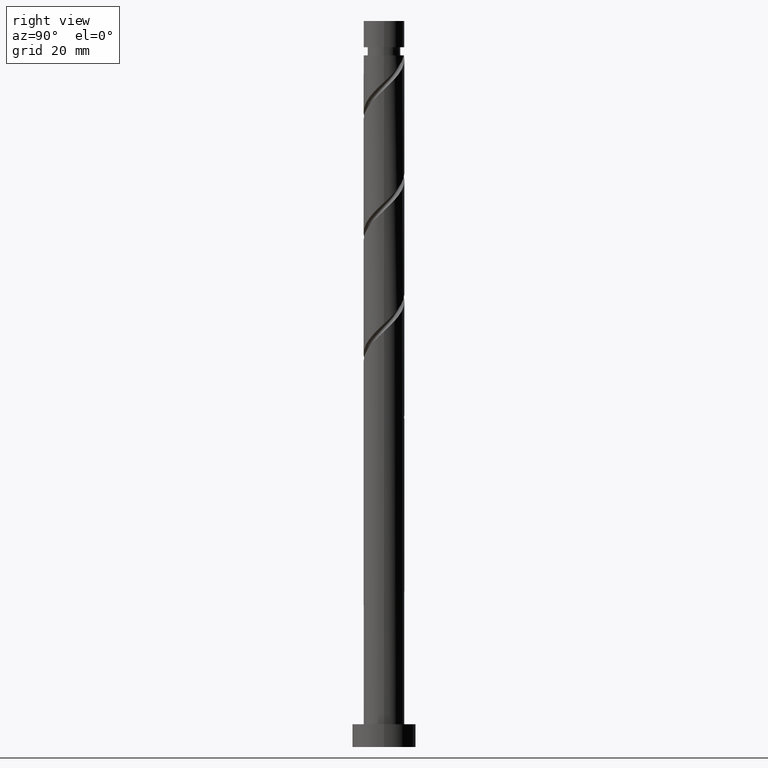
[diagram: clean part render]
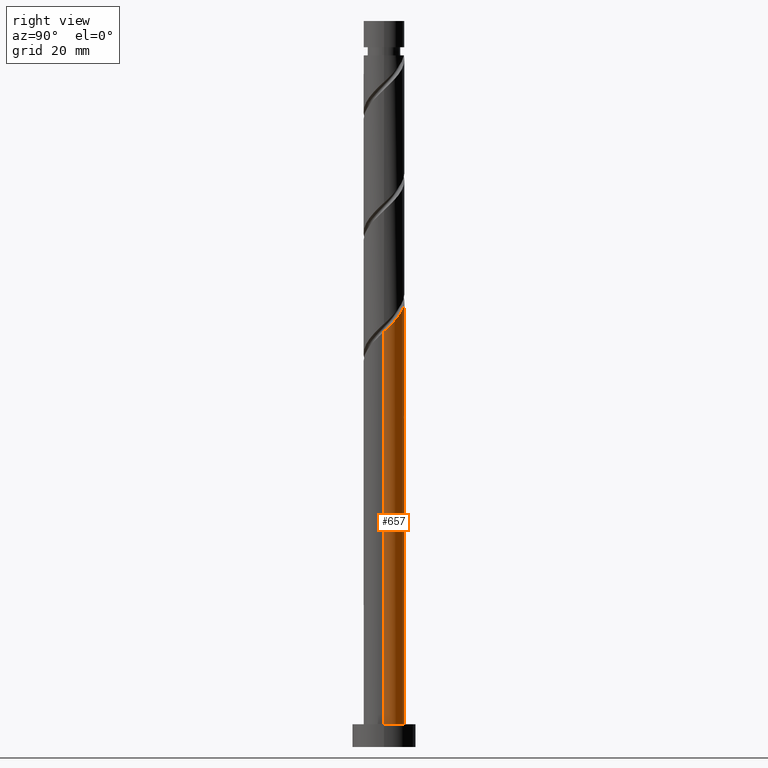
[diagram: same view with one face highlighted and labeled with its STEP entity id]
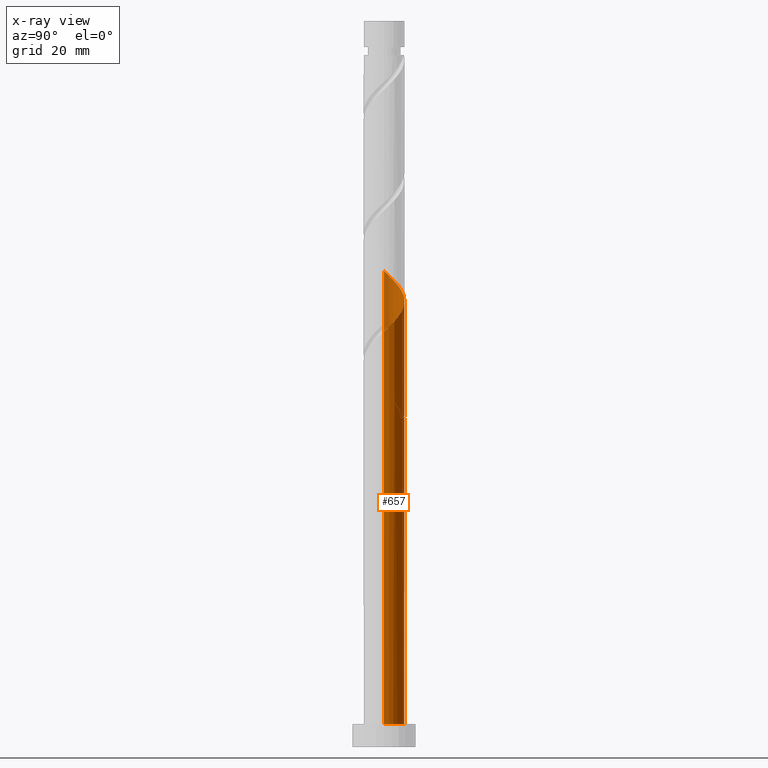
[diagram: x-ray of the same camera — body ghosted, the highlighted face saturated]
A machine part, right view. The second image highlights one B-rep face of the part: STEP entity #657.
The next image is the same camera in x-ray: the body ghosted, the highlighted face saturated — about 0% of this face is hidden behind the body in this view.
In plain terms, the highlighted cylindrical surface (edge-blend (fillet) strip) has radius 4.5 mm, axis along (-0, -0, -1).
Its self-contained STEP definition (entity closure, byte-faithful):
#18 = CARTESIAN_POINT ( 'NONE',  ( -4.500000000000007105, -3.395198299693686039E-15, 78.24505518243749691 ) ) ;
#21 = CARTESIAN_POINT ( 'NONE',  ( -4.500000000000007105, -3.395198299693686039E-15, 104.9117218491041683 ) ) ;
#33 = CARTESIAN_POINT ( 'NONE',  ( -4.500000000000000888, 0.000000000000000000, 160.0000000000000000 ) ) ;
#47 = CARTESIAN_POINT ( 'NONE',  ( -0.3832254664060549820, 4.483652332852969380, 73.63996420719293212 ) ) ;
#54 = DIRECTION ( 'NONE',  ( -1.000000000000000000, 0.000000000000000000, 0.000000000000000000 ) ) ;
#112 = CARTESIAN_POINT ( 'NONE',  ( 4.237671230118719379, 1.513982346470448714, 93.03390360113230884 ) ) ;
#115 = DIRECTION ( 'NONE',  ( 0.000000000000000000, 0.000000000000000000, 1.000000000000000000 ) ) ;
#129 = CARTESIAN_POINT ( 'NONE',  ( 2.746435239905300030, 3.564701035571758769, 95.45814602537474514 ) ) ;
#137 = ORIENTED_EDGE ( 'NONE', *, *, #328, .F. ) ;
#153 = VERTEX_POINT ( 'NONE', #1141 ) ;
#182 = VECTOR ( 'NONE', #1261, 1000.000000000000000 ) ;
#200 = CARTESIAN_POINT ( 'NONE',  ( 4.455349029032746877, 0.9046972064923994861, 92.42784299507169976 ) ) ;
#210 = AXIS2_PLACEMENT_3D ( 'NONE', #1637, #115, #1628 ) ;
#228 = CARTESIAN_POINT ( 'NONE',  ( -4.455349029032739772, 0.9046972064924000412, 79.09450966173838538 ) ) ;
#230 = CARTESIAN_POINT ( 'NONE',  ( -4.500000000000000888, 4.696441700897907453E-15, 79.94396414103928805 ) ) ;
#233 = ORIENTED_EDGE ( 'NONE', *, *, #405, .F. ) ;
#240 = CARTESIAN_POINT ( 'NONE',  ( -3.639477652303301447, 2.646545374329495992, 77.27632784355655815 ) ) ;
#262 = CARTESIAN_POINT ( 'NONE',  ( -2.101655684935357371, 3.979075694426905230, 100.3066308738595751 ) ) ;
#267 = CARTESIAN_POINT ( 'NONE',  ( -3.601357663860915714, 2.774677455649293023, 102.1248126920414308 ) ) ;
#268 = CARTESIAN_POINT ( 'NONE',  ( -3.919276005899266391, 2.211170637825664809, 76.06420663143536842 ) ) ;
#271 = DIRECTION ( 'NONE',  ( -0.000000000000000000, -0.000000000000000000, -1.000000000000000000 ) ) ;
#285 = VECTOR ( 'NONE', #271, 1000.000000000000000 ) ;
#328 = EDGE_CURVE ( 'NONE', #404, #549, #1503, .T. ) ;
#367 = CARTESIAN_POINT ( 'NONE',  ( -2.746435239905296477, 3.564701035571754328, 76.06420663143535421 ) ) ;
#373 = CARTESIAN_POINT ( 'NONE',  ( 3.639477652303308108, 2.646545374329497768, 94.24602481325354120 ) ) ;
#382 = CARTESIAN_POINT ( 'NONE',  ( 1.630892978049458764, 4.194065819005350804, 96.67026723749594908 ) ) ;
#390 = CARTESIAN_POINT ( 'NONE',  ( 3.258961873401925224, 3.169823262210497816, 94.85208541931415027 ) ) ;
#393 = CARTESIAN_POINT ( 'NONE',  ( 4.500000000000000888, 5.510910596163089556E-16, 160.0000000000000000 ) ) ;
#398 = CARTESIAN_POINT ( 'NONE',  ( -4.500000000000006217, 0.5153801732330614005, 104.4257618961328404 ) ) ;
#404 = VERTEX_POINT ( 'NONE', #998 ) ;
#405 = EDGE_CURVE ( 'NONE', #940, #404, #987, .T. ) ;
#428 = CARTESIAN_POINT ( 'NONE',  ( -2.101655684935357371, 3.979075694426905230, 73.63996420719293212 ) ) ;
#484 = AXIS2_PLACEMENT_3D ( 'NONE', #1597, #1304, #54 ) ;
#489 = EDGE_CURVE ( 'NONE', #1148, #671, #918, .T. ) ;
#523 = CARTESIAN_POINT ( 'NONE',  ( -2.673760399956921052, 3.676903225482062609, 100.9126914799202126 ) ) ;
#524 = CARTESIAN_POINT ( 'NONE',  ( -3.137559031908918161, 3.225790340565678260, 74.85208541931413606 ) ) ;
#525 = CARTESIAN_POINT ( 'NONE',  ( 4.500000000000000888, 5.510910596163089556E-16, 5.000000000000000000 ) ) ;
#532 = CARTESIAN_POINT ( 'NONE',  ( -4.237194347937617955, 1.647663820002035040, 76.67026723749594908 ) ) ;
#549 = VERTEX_POINT ( 'NONE', #230 ) ;
#566 = CARTESIAN_POINT ( 'NONE',  ( -4.500000000000000888, 0.000000000000000000, 5.000000000000000000 ) ) ;
#623 = CARTESIAN_POINT ( 'NONE',  ( 4.019993431204690992, 2.123267486448498609, 93.63996420719296054 ) ) ;
#649 = CARTESIAN_POINT ( 'NONE',  ( -1.027877349690237141, 4.428552829077677444, 74.24602481325354120 ) ) ;
#657 = ADVANCED_FACE ( 'NONE', ( #1065 ), #932, .T. ) ;
#663 = CARTESIAN_POINT ( 'NONE',  ( -0.2614264168781256226, 4.538751836628266645, 98.48844905567779051 ) ) ;
#667 = LINE ( 'NONE', #33, #182 ) ;
#671 = VERTEX_POINT ( 'NONE', #566 ) ;
#679 = CARTESIAN_POINT ( 'NONE',  ( -0.8954886933959586015, 4.410000000000006359, 72.42784299507172818 ) ) ;
#681 = CARTESIAN_POINT ( 'NONE',  ( 0.2614264168781267328, 4.538751836628258651, 73.03390360113233726 ) ) ;
#711 = EDGE_CURVE ( 'NONE', #779, #153, #849, .T. ) ;
#714 = CARTESIAN_POINT ( 'NONE',  ( -4.500000000000007105, -3.395198299693686039E-15, 78.24505518243749691 ) ) ;
#723 = DIRECTION ( 'NONE',  ( -0.000000000000000000, -0.000000000000000000, -1.000000000000000000 ) ) ;
#740 = CARTESIAN_POINT ( 'NONE',  ( -4.019993431204682999, 2.123267486448497277, 77.88238844961716723 ) ) ;
#746 = CARTESIAN_POINT ( 'NONE',  ( 4.500000000000006217, 0.1294898693572087978, 91.70048652048905069 ) ) ;
#758 = CARTESIAN_POINT ( 'NONE',  ( -4.500000000000000888, 0.000000000000000000, 160.0000000000000000 ) ) ;
#771 = CARTESIAN_POINT ( 'NONE',  ( -3.919276005899266391, 2.211170637825664809, 102.7308732981020256 ) ) ;
#777 = CARTESIAN_POINT ( 'NONE',  ( -3.137559031908918161, 3.225790340565678260, 101.5187520859807933 ) ) ;
#779 = VERTEX_POINT ( 'NONE', #679 ) ;
#811 = CARTESIAN_POINT ( 'NONE',  ( 0.000000000000000000, 0.000000000000000000, 160.0000000000000000 ) ) ;
#849 = CIRCLE ( 'NONE', #484, 4.500000000000000888 ) ;
#856 = CARTESIAN_POINT ( 'NONE',  ( -4.500000000000000000, 0.1294898693572039405, 79.82186613632107708 ) ) ;
#870 = EDGE_CURVE ( 'NONE', #1160, #671, #667, .T. ) ;
#871 = CARTESIAN_POINT ( 'NONE',  ( -2.233908606408675723, 3.959578808933012617, 75.45814602537477356 ) ) ;
#890 = EDGE_LOOP ( 'NONE', ( #233, #1572, #1007, #1493, #1434, #900, #1507, #137 ) ) ;
#892 = CARTESIAN_POINT ( 'NONE',  ( -0.8954886933959586015, 4.410000000000006359, 72.42784299507172818 ) ) ;
#900 = ORIENTED_EDGE ( 'NONE', *, *, #711, .T. ) ;
#903 = LINE ( 'NONE', #393, #285 ) ;
#908 = VECTOR ( 'NONE', #723, 1000.000000000000000 ) ;
#918 = CIRCLE ( 'NONE', #210, 4.500000000000000888 ) ;
#932 = CYLINDRICAL_SURFACE ( 'NONE', #1247, 4.500000000000000888 ) ;
#940 = VERTEX_POINT ( 'NONE', #1041 ) ;
#987 =( BOUNDED_CURVE ( )  B_SPLINE_CURVE ( 2, ( #1345, #746, #1640, #200, #112, #623, #373, #390, #129, #1563, #382, #1412, #1016, #663, #1544, #1405, #262, #523, #777, #267, #771, #1156, #1422, #398, #21 ),
 .UNSPECIFIED., .F., .T. ) 
 B_SPLINE_CURVE_WITH_KNOTS ( ( 3, 2, 2, 2, 2, 2, 2, 2, 2, 2, 2, 2, 3 ),
 ( 0.1795252162417514397, 0.1818181818181817677, 0.1931818181818182323, 0.2045454545454545858, 0.2159090909090909394, 0.2272727272727272929, 0.2386363636363636465, 0.2500000000000000000, 0.2613636363636363535, 0.2727272727272727071, 0.2840909090909090606, 0.2954545454545454142, 0.3045252162417511621 ),
 .UNSPECIFIED. ) 
 CURVE ( )  GEOMETRIC_REPRESENTATION_ITEM ( )  RATIONAL_B_SPLINE_CURVE ( ( 0.9061101570135606798, 0.9072237824201427880, 0.9090909090909201629, 0.8998376744372224012, 0.9090909090909201629, 0.8998376744372224012, 0.9090909090909201629, 0.8998376744372224012, 0.9090909090909201629, 0.8998376744372224012, 0.9090909090909201629, 0.8998376744372224012, 0.9090909090909201629, 0.8998376744372224012, 0.9090909090909201629, 0.8998376744372224012, 0.9090909090909201629, 0.8998376744372224012, 0.9090909090909201629, 0.8998376744372224012, 0.9090909090909201629, 0.8998376744372224012, 0.9090909090909201629, 0.9017048011079999981, 0.9061101570135603467 ) ) 
 REPRESENTATION_ITEM ( '' )  );
#994 = EDGE_CURVE ( 'NONE', #549, #153, #1157, .T. ) ;
#998 = CARTESIAN_POINT ( 'NONE',  ( -4.500000000000007105, -3.395198299693686039E-15, 104.9117218491041683 ) ) ;
#1000 = CARTESIAN_POINT ( 'NONE',  ( -3.258961873401917675, 3.169823262210495596, 76.67026723749597750 ) ) ;
#1007 = ORIENTED_EDGE ( 'NONE', *, *, #489, .T. ) ;
#1009 = CARTESIAN_POINT ( 'NONE',  ( -4.237671230118711385, 1.513982346470447826, 78.48844905567777630 ) ) ;
#1016 = CARTESIAN_POINT ( 'NONE',  ( 0.3832254664060570359, 4.483652332852976485, 97.88238844961716723 ) ) ;
#1018 = EDGE_CURVE ( 'NONE', #779, #1160, #1331, .T. ) ;
#1028 = CARTESIAN_POINT ( 'NONE',  ( -4.500000000000007994, 0.5153801732330529628, 77.75909522946616903 ) ) ;
#1041 = CARTESIAN_POINT ( 'NONE',  ( 4.500000000000007994, 3.215716451251728954E-15, 91.57838851577083972 ) ) ;
#1065 = FACE_OUTER_BOUND ( 'NONE', #890, .T. ) ;
#1073 = EDGE_CURVE ( 'NONE', #940, #1148, #903, .T. ) ;
#1141 = CARTESIAN_POINT ( 'NONE',  ( 0.8954886933959600448, 4.410000000000000142, 72.42784299507172818 ) ) ;
#1148 = VERTEX_POINT ( 'NONE', #525 ) ;
#1150 = CARTESIAN_POINT ( 'NONE',  ( -2.673760399956921052, 3.676903225482062609, 74.24602481325352699 ) ) ;
#1156 = CARTESIAN_POINT ( 'NONE',  ( -4.237194347937617955, 1.647663820002035040, 103.3369339041625921 ) ) ;
#1157 =( BOUNDED_CURVE ( )  B_SPLINE_CURVE ( 2, ( #1517, #856, #1373, #228, #1009, #740, #240, #1000, #367, #871, #1391, #649, #47, #681, #1158 ),
 .UNSPECIFIED., .F., .T. ) 
 B_SPLINE_CURVE_WITH_KNOTS ( ( 3, 2, 2, 2, 2, 2, 2, 3 ),
 ( 0.9295252162417513286, 0.9318181818181817677, 0.9431818181818182323, 0.9545454545454545858, 0.9659090909090909394, 0.9772727272727272929, 0.9886363636363636465, 1.000000000000000000 ),
 .UNSPECIFIED. ) 
 CURVE ( )  GEOMETRIC_REPRESENTATION_ITEM ( )  RATIONAL_B_SPLINE_CURVE ( ( 0.9061101570135537964, 0.9072237824201360157, 0.9090909090909135015, 0.8998376744372158509, 0.9090909090909135015, 0.8998376744372158509, 0.9090909090909135015, 0.8998376744372158509, 0.9090909090909135015, 0.8998376744372158509, 0.9090909090909135015, 0.8998376744372158509, 0.9090909090909135015, 0.8998376744372158509, 0.9090909090909135015 ) ) 
 REPRESENTATION_ITEM ( '' )  );
#1158 = CARTESIAN_POINT ( 'NONE',  ( 0.8954886933959600448, 4.410000000000000142, 72.42784299507172818 ) ) ;
#1160 = VERTEX_POINT ( 'NONE', #714 ) ;
#1184 = CARTESIAN_POINT ( 'NONE',  ( -1.529550969913793246, 4.281248163371747850, 73.03390360113233726 ) ) ;
#1212 = DIRECTION ( 'NONE',  ( -1.000000000000000000, 0.000000000000000000, 0.000000000000000000 ) ) ;
#1247 = AXIS2_PLACEMENT_3D ( 'NONE', #811, #1334, #1212 ) ;
#1261 = DIRECTION ( 'NONE',  ( -0.000000000000000000, -0.000000000000000000, -1.000000000000000000 ) ) ;
#1304 = DIRECTION ( 'NONE',  ( 0.000000000000000000, -0.000000000000000000, -1.000000000000000000 ) ) ;
#1331 =( BOUNDED_CURVE ( )  B_SPLINE_CURVE ( 2, ( #892, #1184, #428, #1150, #524, #1414, #268, #532, #1556, #1028, #18 ),
 .UNSPECIFIED., .F., .T. ) 
 B_SPLINE_CURVE_WITH_KNOTS ( ( 3, 2, 2, 2, 2, 3 ),
 ( 0.000000000000000000, 0.01136363636363635181, 0.02272727272727270362, 0.03409090909090906063, 0.04545454545454540723, 0.05452521624175130782 ),
 .UNSPECIFIED. ) 
 CURVE ( )  GEOMETRIC_REPRESENTATION_ITEM ( )  RATIONAL_B_SPLINE_CURVE ( ( 0.9090909090909201629, 0.8998376744372224012, 0.9090909090909201629, 0.8998376744372224012, 0.9090909090909201629, 0.8998376744372224012, 0.9090909090909201629, 0.8998376744372224012, 0.9090909090909201629, 0.9017048011079998870, 0.9061101570135604577 ) ) 
 REPRESENTATION_ITEM ( '' )  );
#1334 = DIRECTION ( 'NONE',  ( -0.000000000000000000, -0.000000000000000000, -1.000000000000000000 ) ) ;
#1345 = CARTESIAN_POINT ( 'NONE',  ( 4.500000000000007994, 3.215716451251728954E-15, 91.57838851577083972 ) ) ;
#1373 = CARTESIAN_POINT ( 'NONE',  ( -4.492553887271115265, 0.2587654729000739007, 79.70057026779902287 ) ) ;
#1391 = CARTESIAN_POINT ( 'NONE',  ( -1.630892978049455877, 4.194065819005344586, 74.85208541931415027 ) ) ;
#1405 = CARTESIAN_POINT ( 'NONE',  ( -1.529550969913793246, 4.281248163371747850, 99.70057026779900866 ) ) ;
#1412 = CARTESIAN_POINT ( 'NONE',  ( 1.027877349690240028, 4.428552829077684549, 97.27632784355657236 ) ) ;
#1414 = CARTESIAN_POINT ( 'NONE',  ( -3.601357663860915714, 2.774677455649293023, 75.45814602537475935 ) ) ;
#1422 = CARTESIAN_POINT ( 'NONE',  ( -4.383476546723557021, 1.017415040347144695, 103.9429945102231869 ) ) ;
#1434 = ORIENTED_EDGE ( 'NONE', *, *, #1018, .F. ) ;
#1493 = ORIENTED_EDGE ( 'NONE', *, *, #870, .F. ) ;
#1503 = LINE ( 'NONE', #758, #908 ) ;
#1507 = ORIENTED_EDGE ( 'NONE', *, *, #994, .F. ) ;
#1517 = CARTESIAN_POINT ( 'NONE',  ( -4.500000000000000888, 4.696441700897907453E-15, 79.94396414103928805 ) ) ;
#1544 = CARTESIAN_POINT ( 'NONE',  ( -0.8954886933959586015, 4.410000000000006359, 99.09450966173841380 ) ) ;
#1556 = CARTESIAN_POINT ( 'NONE',  ( -4.383476546723557021, 1.017415040347144695, 77.27632784355658657 ) ) ;
#1563 = CARTESIAN_POINT ( 'NONE',  ( 2.233908606408679276, 3.959578808933018834, 96.06420663143535421 ) ) ;
#1572 = ORIENTED_EDGE ( 'NONE', *, *, #1073, .T. ) ;
#1597 = CARTESIAN_POINT ( 'NONE',  ( 0.000000000000000000, 0.000000000000000000, 72.42784299507174239 ) ) ;
#1628 = DIRECTION ( 'NONE',  ( 1.000000000000000000, 0.000000000000000000, 0.000000000000000000 ) ) ;
#1637 = CARTESIAN_POINT ( 'NONE',  ( 0.000000000000000000, 0.000000000000000000, 5.000000000000000000 ) ) ;
#1640 = CARTESIAN_POINT ( 'NONE',  ( 4.492553887271121482, 0.2587654729000725129, 91.82178238901111911 ) ) ;